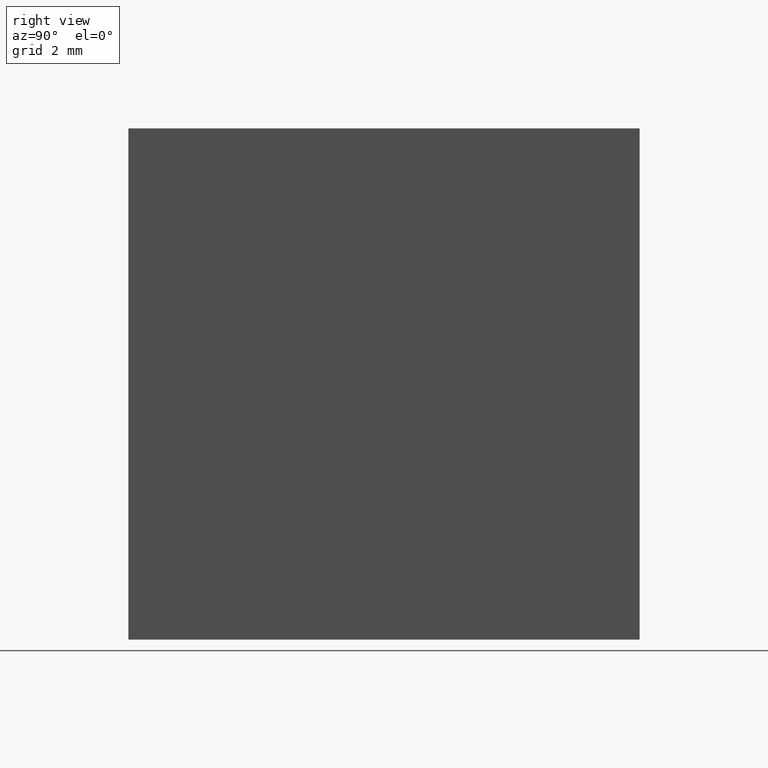
[diagram: clean part render]
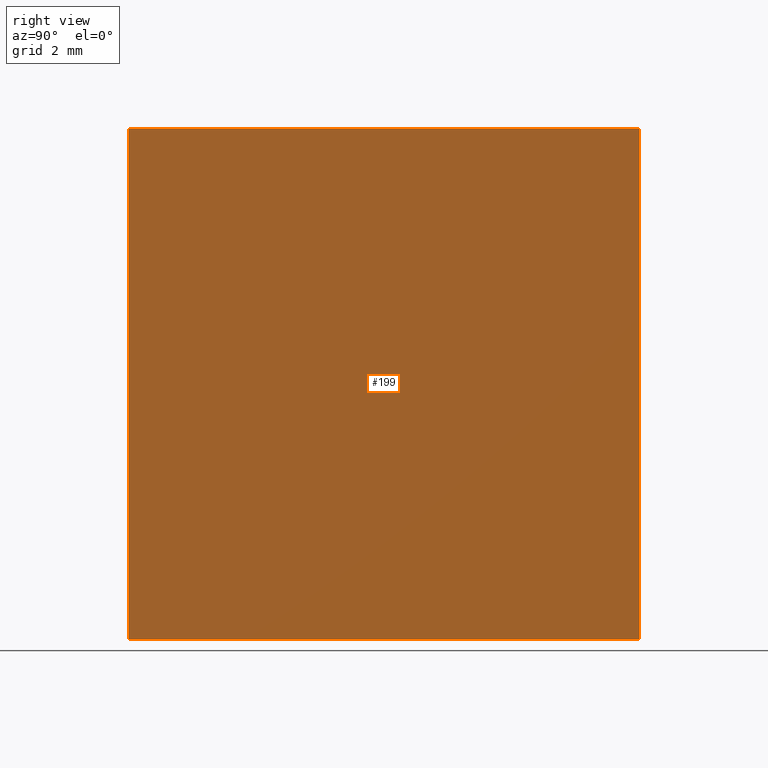
[diagram: same view with one face highlighted and labeled with its STEP entity id]
A machine part, right view. The second image highlights one B-rep face of the part: STEP entity #199.
In plain terms, the highlighted planar face has unit normal (-1, 0, 0).
Its self-contained STEP definition (entity closure, byte-faithful):
#3 = LINE ( 'NONE', #106, #179 ) ;
#5 = VECTOR ( 'NONE', #143, 1000.000000000000000 ) ;
#6 = DIRECTION ( 'NONE',  ( -0.000000000000000000, -0.000000000000000000, -1.000000000000000000 ) ) ;
#11 = DIRECTION ( 'NONE',  ( 0.000000000000000000, 0.000000000000000000, 1.000000000000000000 ) ) ;
#12 = LINE ( 'NONE', #97, #5 ) ;
#16 = ORIENTED_EDGE ( 'NONE', *, *, #83, .T. ) ;
#20 = VERTEX_POINT ( 'NONE', #47 ) ;
#21 = ORIENTED_EDGE ( 'NONE', *, *, #31, .F. ) ;
#28 = CARTESIAN_POINT ( 'NONE',  ( -75.38864580802534476, 5.000000000000000888, 10.00000000000000000 ) ) ;
#31 = EDGE_CURVE ( 'NONE', #39, #120, #3, .T. ) ;
#39 = VERTEX_POINT ( 'NONE', #28 ) ;
#41 = AXIS2_PLACEMENT_3D ( 'NONE', #74, #217, #11 ) ;
#47 = CARTESIAN_POINT ( 'NONE',  ( -75.38864580802534476, -5.000000000000000888, 10.00000000000000000 ) ) ;
#58 = ORIENTED_EDGE ( 'NONE', *, *, #204, .F. ) ;
#60 = CARTESIAN_POINT ( 'NONE',  ( -75.38864580802534476, 5.000000000000000888, 0.000000000000000000 ) ) ;
#63 = FACE_OUTER_BOUND ( 'NONE', #167, .T. ) ;
#74 = CARTESIAN_POINT ( 'NONE',  ( -75.38864580802534476, 5.000000000000000888, 10.00000000000000000 ) ) ;
#83 = EDGE_CURVE ( 'NONE', #20, #144, #206, .T. ) ;
#84 = CARTESIAN_POINT ( 'NONE',  ( -75.38864580802534476, -5.000000000000000888, 0.000000000000000000 ) ) ;
#97 = CARTESIAN_POINT ( 'NONE',  ( -75.38864580802534476, 5.000000000000000888, 10.00000000000000000 ) ) ;
#106 = CARTESIAN_POINT ( 'NONE',  ( -75.38864580802534476, 5.000000000000000888, 10.00000000000000000 ) ) ;
#109 = DIRECTION ( 'NONE',  ( -0.000000000000000000, 1.000000000000000000, -0.000000000000000000 ) ) ;
#111 = DIRECTION ( 'NONE',  ( -0.000000000000000000, -0.000000000000000000, -1.000000000000000000 ) ) ;
#120 = VERTEX_POINT ( 'NONE', #60 ) ;
#132 = LINE ( 'NONE', #147, #240 ) ;
#143 = DIRECTION ( 'NONE',  ( -0.000000000000000000, 1.000000000000000000, -0.000000000000000000 ) ) ;
#144 = VERTEX_POINT ( 'NONE', #84 ) ;
#147 = CARTESIAN_POINT ( 'NONE',  ( -75.38864580802534476, 5.000000000000000888, 0.000000000000000000 ) ) ;
#150 = PLANE ( 'NONE',  #41 ) ;
#167 = EDGE_LOOP ( 'NONE', ( #222, #21, #58, #16 ) ) ;
#175 = EDGE_CURVE ( 'NONE', #144, #120, #132, .T. ) ;
#179 = VECTOR ( 'NONE', #111, 1000.000000000000000 ) ;
#192 = CARTESIAN_POINT ( 'NONE',  ( -75.38864580802534476, -5.000000000000000888, 10.00000000000000000 ) ) ;
#199 = ADVANCED_FACE ( 'NONE', ( #63 ), #150, .F. ) ;
#204 = EDGE_CURVE ( 'NONE', #20, #39, #12, .T. ) ;
#206 = LINE ( 'NONE', #192, #228 ) ;
#217 = DIRECTION ( 'NONE',  ( -1.000000000000000000, 0.000000000000000000, 0.000000000000000000 ) ) ;
#222 = ORIENTED_EDGE ( 'NONE', *, *, #175, .T. ) ;
#228 = VECTOR ( 'NONE', #6, 1000.000000000000000 ) ;
#240 = VECTOR ( 'NONE', #109, 1000.000000000000000 ) ;